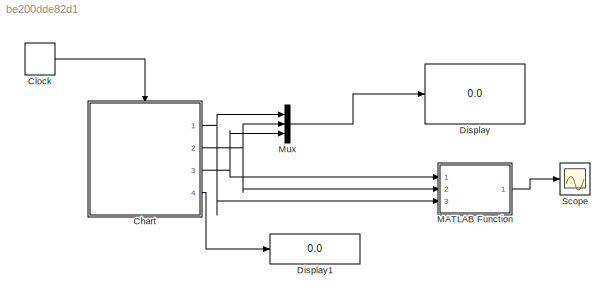
MODEL slx_be200dde82d1
KIND model
CONFIG AbsTol = auto
CONFIG EnableMultiTasking = off
CONFIG FixedStep = auto
CONFIG MaxStep = auto
CONFIG MinStep = auto
CONFIG RelTol = 1e-3
CONFIG SampleTimeConstraint = Unconstrained
CONFIG SolverName = FixedStepAuto
CONFIG StartTime = 0.0
CONFIG StopTime = 10.0
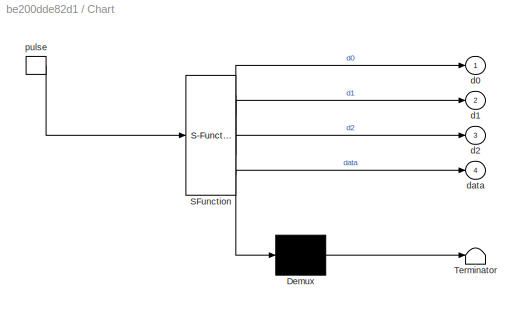
BLOCK [SubSystem] Chart
  ErrorFcn = Stateflow.Translate.translate
  PermitHierarchicalResolution = ExplicitOnly
  Ports = [0, 4, 0, 1]
  RequestExecContextInheritance = off
  SFBlockType = Chart
  TreatAsAtomicUnit = on
BLOCK [Demux] Chart/ Demux 
  Outputs = 1
  Ports = [1, 1]
BLOCK [S-Function] Chart/ SFunction 
  EnableBusSupport = on
  FunctionName = sf_sfun
  PortCounts = [1 5]
  Ports = [1, 5]
  SFcnIsStateOwnerBlock = off
  SFunctionDeploymentMode = off
  Tag = Stateflow S-Function 3
BLOCK [Terminator] Chart/ Terminator 
BLOCK [Outport] Chart/d0
BLOCK [Outport] Chart/d1
  Port = 2
BLOCK [Outport] Chart/d2
  Port = 3
BLOCK [Outport] Chart/data
  Port = 4
BLOCK [TriggerPort] Chart/pulse
  Ports = [0, 1]
  ShowOutputPort = on
  StatesWhenEnabling = held
  VariantControl = (inherit)
BLOCK [DiscretePulseGenerator] Clock
  Period = 0.5
  Ports = [0, 1]
  PulseType = Time based
  PulseWidth = 5
BLOCK [Display] Display
  Decimation = 1
  Ports = [1]
BLOCK [Display] Display1
  Decimation = 1
  Ports = [1]
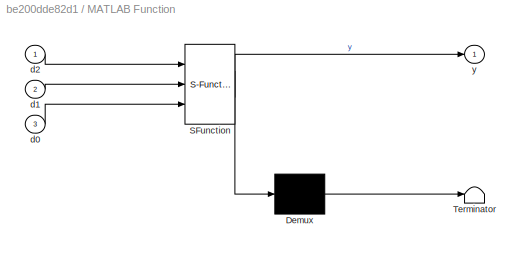
BLOCK [SubSystem] MATLAB Function
  ErrorFcn = Stateflow.Translate.translate
  PermitHierarchicalResolution = ExplicitOnly
  Ports = [3, 1]
  RequestExecContextInheritance = off
  SFBlockType = MATLAB Function
  TreatAsAtomicUnit = on
BLOCK [Demux] MATLAB Function/ Demux 
  Outputs = 1
  Ports = [1, 1]
BLOCK [S-Function] MATLAB Function/ SFunction 
  EnableBusSupport = on
  FunctionName = sf_sfun
  PortCounts = [3 2]
  Ports = [3, 2]
  SFcnIsStateOwnerBlock = off
  SFunctionDeploymentMode = off
  Tag = Stateflow S-Function 2
BLOCK [Terminator] MATLAB Function/ Terminator 
BLOCK [Inport] MATLAB Function/d0
  Port = 3
BLOCK [Inport] MATLAB Function/d1
  Port = 2
BLOCK [Inport] MATLAB Function/d2
BLOCK [Outport] MATLAB Function/y
BLOCK [Mux] Mux
  DisplayOption = bar
  Inputs = 3
  Ports = [3, 1]
BLOCK [Scope] Scope
  Floating = off
  NumInputPorts = 1
  Ports = [1]
  ScopeSpecificationString = Simulink.scopes.TimeScopeBlockCfg('CurrentConfiguration', extmgr.ConfigurationSet(extmgr.Configuration('Core','General UI',true),extmgr.Configuration('Core','Source UI',true),extmgr.Configuration('Sources','WiredSimulink',true),extmgr.Configuration('Visuals','Time Domain',true,'SerializedDisplays',{struct('MinYLimReal','-0.375','MaxYLimReal','3.375','YLabelReal','','MinYLimMag','0.00000','MaxYLimM...<+1348ch>
NET Chart:1 -> MATLAB Function:3, Mux:1
NET Chart:2 -> MATLAB Function:2, Mux:2
NET Chart:3 -> MATLAB Function:1, Mux:3
LINE Chart:4 -> Display1:1
LINE Clock:1 -> Chart:trigger
LINE MATLAB Function:1 -> Scope:1
LINE Mux:1 -> Display:1
note: NET lines group one-source signal fan-out (src -> all destinations, sorted); 1:1 wires keep LINE
CHART MATLAB Function states=1 transitions=1
  STATE_LABEL 'eML_blk_kernel()'
  STATE_LABEL 'SCRIPT:\nfunction y= fcn(d2,d1,d0)\nif(d2==0 && d1==0 && d0==0)\n    y=0;\nelseif(d2==0 && d1==0 && d0==1)\n    y=1;\nelseif(d2==0 && d1==1 && d0==0)\n    y=2;\nelseif(d2==0 && d1==1 && d0==1)\n    y=3;\nelseif(d2==1 && d1==0 && d0==0)\n    y=4;\nelse\n    y=0;\n    \nend\n'
CHART Chart states=12 transitions=33
  STATE_LABEL 'ConversionState\nduring:\ndata2=d2;\ndata1=d1;\ndata0=d0;\nr=0;\ncheck(data2,data1,data0);'
  STATE_LABEL 'digit0\n'
  STATE_LABEL 'zero\nen:\nd0=0;\n'
  STATE_LABEL 'one\nen:\nd0=1\n'
  STATE_LABEL '[r==1]'
  STATE_LABEL 'pulse{send(inc1);}'
  STATE_LABEL 'pulse'
  STATE_LABEL 'zero\nen:\nd0=0;\n'
  STATE_LABEL 'one\nen:\nd0=1\n'
  STATE_LABEL '<!DOCTYPE HTML PUBLIC "-//W3C//DTD HTML 4.0//EN" "http://www.w3.org/TR/REC-html40/strict.dtd">\n<html><head><meta name="qrichtext" content="1" /><style type="text/css">\np, li { white-space: pre-wrap; }\n</style></head><body align="left" style=" font-family:\'Helvetica\'; font-size:12px; font-weight:400; font-style:normal;">\n<p align="left" style=" margin-top:0px; margin-bottom:0px; margin-left:0px; ma...<+1559ch>'
  STATE_LABEL 'check(d02,d01,d00)'
  STATE_LABEL '% Conversion to Decimal'
  STATE_LABEL '[d02==0 && d01==0 && d00==0]'
  STATE_LABEL '{data=0;\nr=0;}'
  STATE_LABEL '[d02==0 && d01==0 && d00==1]'
  STATE_LABEL '{data=1;\nr=0;}'
  STATE_LABEL '[d02==0 && d01==1 && d00==0]'
  STATE_LABEL '{data=2;\nr=0;}'
  STATE_LABEL '[d02==0 && d01==1 && d00==1]'
  STATE_LABEL '{data=3;\nr=0;}'
  STATE_LABEL '[d02==1 && d01==0 && d00==0]'
  STATE_LABEL '{data=4;\nr=0;}'
  STATE_LABEL 'digit1\n'
  STATE_LABEL 'zero\nen:\nd1=0;\n'
  STATE_LABEL 'one\nen:\nd1=1;\n'
  STATE_LABEL 'inc1{send(inc2);}'
  STATE_LABEL 'inc1'
  STATE_LABEL 'zero\nen:\nd1=0;\n'
  STATE_LABEL 'one\nen:\nd1=1;\n'
  STATE_LABEL 'digit2\n'
  STATE_LABEL 'zero\nen:\nd2=0;\n'
  STATE_LABEL 'one\nen:\nd2=1;\n'
  STATE_LABEL 'inc2'
  STATE_LABEL 'inc2'
  STATE_LABEL 'zero\nen:\nd2=0;\n'
  STATE_LABEL 'one\nen:\nd2=1;\n'
CHART  states=0 transitions=0
CHART  states=0 transitions=0
